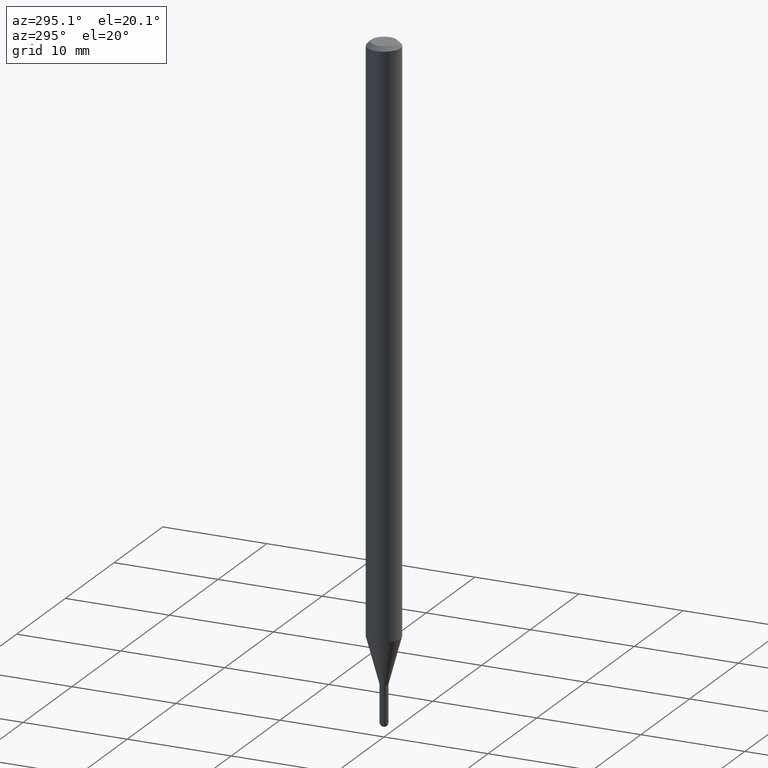
[diagram: clean part render]
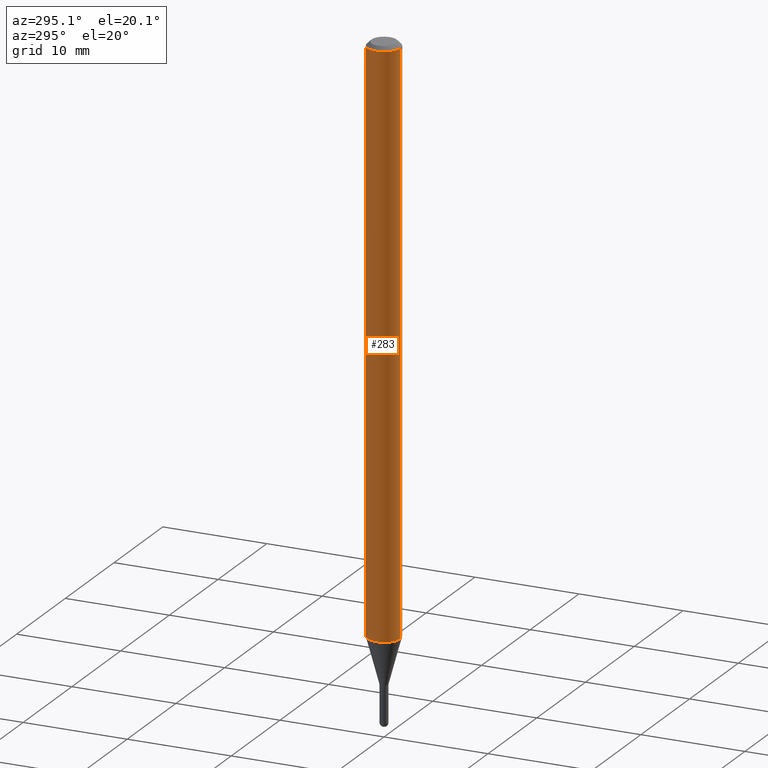
[diagram: same view with one face highlighted and labeled with its STEP entity id]
A machine part, auxiliary view. The second image highlights one B-rep face of the part: STEP entity #283.
In plain terms, the highlighted cylindrical surface (edge-blend (fillet) strip) has radius 1.5875 mm, axis along (-0, 0, 1).
Its self-contained STEP definition (entity closure, byte-faithful):
#11 = VERTEX_POINT ( 'NONE', #396 ) ;
#16 = ORIENTED_EDGE ( 'NONE', *, *, #116, .F. ) ;
#48 = VERTEX_POINT ( 'NONE', #328 ) ;
#51 = DIRECTION ( 'NONE',  ( -6.982962677686265922E-15, -1.000000000000000000, 4.370956789862821150E-15 ) ) ;
#58 = ORIENTED_EDGE ( 'NONE', *, *, #305, .T. ) ;
#60 = CARTESIAN_POINT ( 'NONE',  ( -4.364351673553916201E-16, -0.06250000000000000000, 2.182175128975547640E-16 ) ) ;
#70 = DIRECTION ( 'NONE',  ( -2.445469596993278847E-29, 3.491480206360875830E-15, 1.000000000000000000 ) ) ;
#98 = ORIENTED_EDGE ( 'NONE', *, *, #496, .F. ) ;
#111 = DIRECTION ( 'NONE',  ( -2.445469596993278567E-29, 3.491480206360876224E-15, 1.000000000000000000 ) ) ;
#116 = EDGE_CURVE ( 'NONE', #48, #11, #505, .T. ) ;
#146 = CARTESIAN_POINT ( 'NONE',  ( 4.440892098500625669E-16, 0.06250000000000000000, -2.182175128975547640E-16 ) ) ;
#150 = DIRECTION ( 'NONE',  ( -6.982962677686265922E-15, -1.000000000000000000, 3.491480206360876224E-15 ) ) ;
#170 = AXIS2_PLACEMENT_3D ( 'NONE', #239, #370, #51 ) ;
#183 = DIRECTION ( 'NONE',  ( -2.445469596993278847E-29, 3.491480206360875830E-15, 1.000000000000000000 ) ) ;
#201 = EDGE_LOOP ( 'NONE', ( #98, #58, #211, #16 ) ) ;
#211 = ORIENTED_EDGE ( 'NONE', *, *, #231, .T. ) ;
#231 = EDGE_CURVE ( 'NONE', #304, #11, #493, .T. ) ;
#239 = CARTESIAN_POINT ( 'NONE',  ( 5.305675216085086761E-29, -7.575093152299557168E-15, -2.169593612044267594 ) ) ;
#251 = VERTEX_POINT ( 'NONE', #352 ) ;
#265 = VECTOR ( 'NONE', #70, 39.37007874015748143 ) ;
#283 = ADVANCED_FACE ( 'NONE', ( #389 ), #501, .T. ) ;
#291 = CARTESIAN_POINT ( 'NONE',  ( -4.364351673553386678E-16, -0.06250000000000759115, -2.169593612044267150 ) ) ;
#304 = VERTEX_POINT ( 'NONE', #291 ) ;
#305 = EDGE_CURVE ( 'NONE', #251, #304, #486, .T. ) ;
#323 = DIRECTION ( 'NONE',  ( -2.445469596993278567E-29, 3.491480206360876224E-15, 1.000000000000000000 ) ) ;
#328 = CARTESIAN_POINT ( 'NONE',  ( 4.440892098501160615E-16, 0.06249999999999995837, -0.01500000000000028394 ) ) ;
#329 = AXIS2_PLACEMENT_3D ( 'NONE', #407, #323, #410 ) ;
#352 = CARTESIAN_POINT ( 'NONE',  ( 4.440892098501153712E-16, 0.06249999999999240191, -2.169593612044267594 ) ) ;
#370 = DIRECTION ( 'NONE',  ( -2.445469596993278567E-29, 3.491480206360876224E-15, 1.000000000000000000 ) ) ;
#374 = AXIS2_PLACEMENT_3D ( 'NONE', #504, #111, #150 ) ;
#385 = VECTOR ( 'NONE', #183, 39.37007874015748143 ) ;
#389 = FACE_OUTER_BOUND ( 'NONE', #201, .T. ) ;
#396 = CARTESIAN_POINT ( 'NONE',  ( -4.364351673553912750E-16, -0.06250000000000005551, -0.01499999999999984852 ) ) ;
#407 = CARTESIAN_POINT ( 'NONE',  ( 3.668204395489934070E-31, -5.237220309541337608E-17, -0.01500000000000006710 ) ) ;
#410 = DIRECTION ( 'NONE',  ( -6.982962677686265922E-15, -1.000000000000000000, 3.483106191921935554E-15 ) ) ;
#427 = LINE ( 'NONE', #146, #265 ) ;
#486 = CIRCLE ( 'NONE', #170, 0.06250000000000000000 ) ;
#493 = LINE ( 'NONE', #60, #385 ) ;
#496 = EDGE_CURVE ( 'NONE', #251, #48, #427, .T. ) ;
#501 = CYLINDRICAL_SURFACE ( 'NONE', #374, 0.06250000000000000000 ) ;
#504 = CARTESIAN_POINT ( 'NONE',  ( 0.000000000000000000, 0.000000000000000000, 0.000000000000000000 ) ) ;
#505 = CIRCLE ( 'NONE', #329, 0.06250000000000000000 ) ;